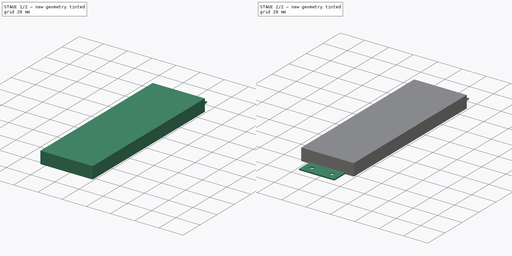
[diagram: build sequence overview — one tinted view per stage of 2, left to right]
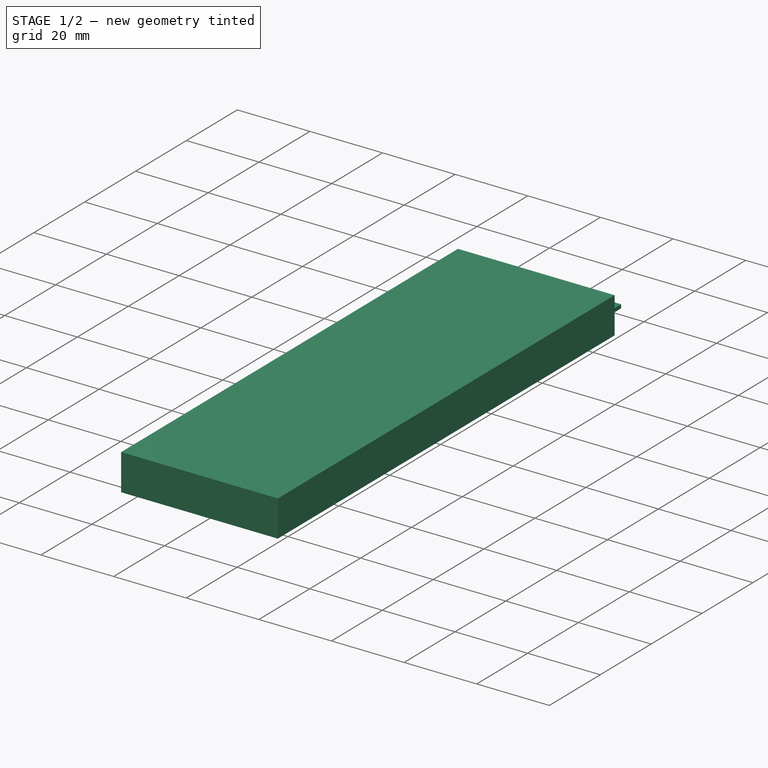
[diagram: stage 1 of 2 — iso view after this stage's code; geometry added in this stage tinted green]
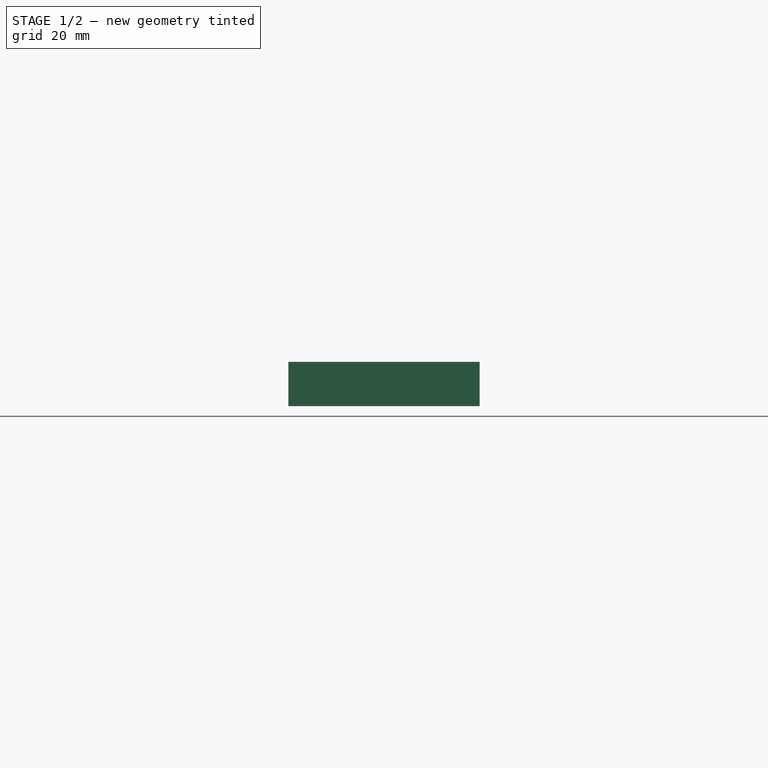
[diagram: stage 1 of 2 — front view after this stage's code; geometry added in this stage tinted green]
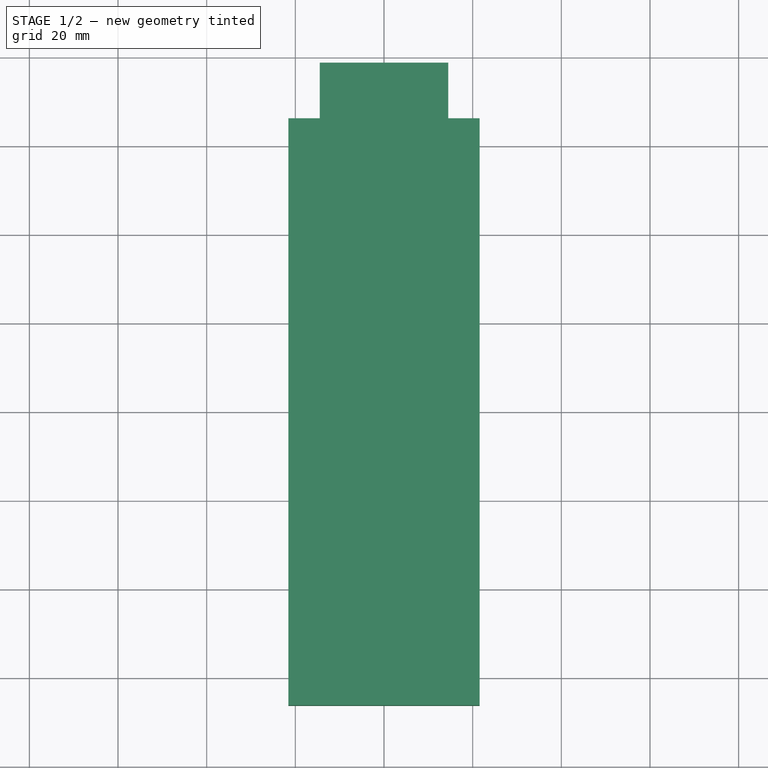
[diagram: stage 1 of 2 — top view after this stage's code; geometry added in this stage tinted green]
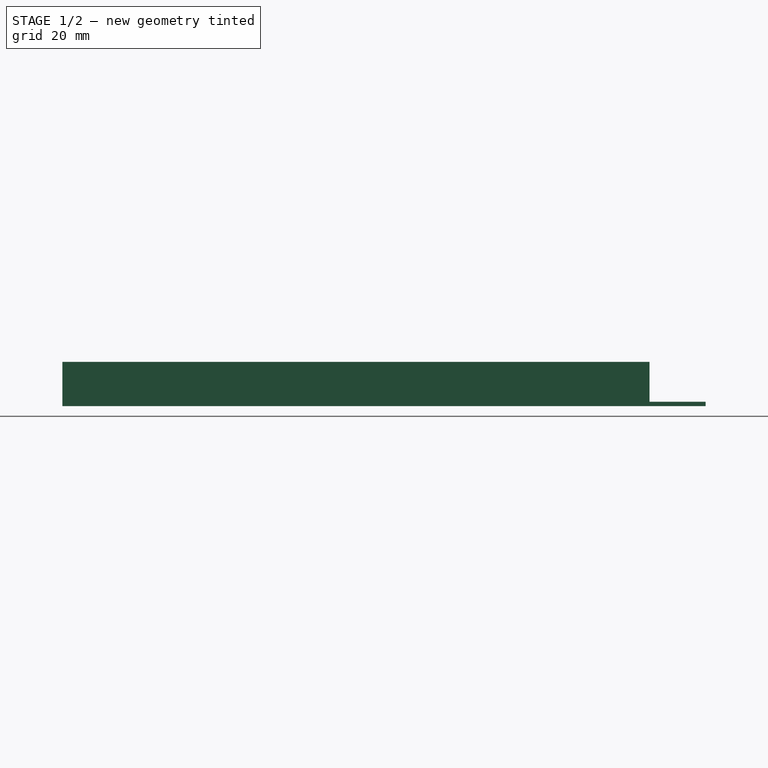
[diagram: stage 1 of 2 — right view after this stage's code; geometry added in this stage tinted green]
FCSTD DOCUMENT  (FreeCAD 0.22R37100 (Git))
Label: UET-VAF-060A67
License: All rights reserved
LicenseURL: http://en.wikipedia.org/wiki/All_rights_reserved
objects: Sketcher::SketchObject×5, PartDesign::SubShapeBinder×3, PartDesign::Pad×2, PartDesign::Pocket×1, PartDesign::Mirrored×1, PartDesign::Body×1
note: 16 computed .brp shape members not serialized (recipe doc carries the construction recipe); baked Part::Feature solids carry a one-line shape summary decoded from their .brp

FEATURE [Sketcher::SketchObject] Sketch  label="holes"
  FullyConstrained = true
  sketch-geometry (9):
    g0: LineSegment StartX=-8.25 StartY=-72.5 StartZ=0 EndX=8.25 EndY=-72.5 EndZ=0
    g1: LineSegment StartX=8.25 StartY=-72.5 StartZ=0 EndX=8.25 EndY=72.5 EndZ=0
    g2: LineSegment StartX=8.25 StartY=72.5 StartZ=0 EndX=-8.25 EndY=72.5 EndZ=0
    g3: LineSegment StartX=-8.25 StartY=72.5 StartZ=0 EndX=-8.25 EndY=-72.5 EndZ=0
    g4: GeomPoint X=0 Y=0 Z=0
    g5: Circle CenterX=8.25 CenterY=72.5 CenterZ=0 NormalX=0 NormalY=0 NormalZ=1 AngleXU=0 Radius=1.7
    g6: Circle CenterX=-8.25 CenterY=72.5 CenterZ=0 NormalX=0 NormalY=0 NormalZ=1 AngleXU=0 Radius=1.7
    g7: Circle CenterX=8.25 CenterY=-72.5 CenterZ=0 NormalX=0 NormalY=0 NormalZ=1 AngleXU=0 Radius=1.7
    g8: Circle CenterX=-8.25 CenterY=-72.5 CenterZ=0 NormalX=0 NormalY=0 NormalZ=1 AngleXU=0 Radius=1.7
  constraints (20):
    c: Coincident(g0,g1)
    c: Coincident(g1,g2)
    c: Coincident(g2,g3)
    c: Coincident(g3,g0)
    c: Horizontal(g0)
    c: Horizontal(g2)
    c: Vertical(g1)
    c: Vertical(g3)
    c: Symmetric(g2,g0,g4)
    c: Coincident(g4,g-1)
    c: Coincident(g5,g1)
    c: Coincident(g6,g2)
    c: Coincident(g7,g0)
    c: Coincident(g8,g0)
    c: Equal(g7,g5)
    c: Equal(g7,g6)
    c: Equal(g7,g8)
    c: Diameter(g7) = 3.4
    c: DistanceX(g8,g5) = 16.5
    c: DistanceY(g8,g5) = 145
FEATURE [Sketcher::SketchObject] Sketch001
  FullyConstrained = true
  sketch-geometry (5):
    g0: LineSegment StartX=-21.575 StartY=-65 StartZ=0 EndX=21.575 EndY=-65 EndZ=0
    g1: LineSegment StartX=21.575 StartY=-65 StartZ=0 EndX=21.575 EndY=65 EndZ=0
    g2: LineSegment StartX=21.575 StartY=65 StartZ=0 EndX=-21.575 EndY=65 EndZ=0
    g3: LineSegment StartX=-21.575 StartY=65 StartZ=0 EndX=-21.575 EndY=-65 EndZ=0
    g4: GeomPoint X=0 Y=0 Z=0
  constraints (12):
    c: Coincident(g0,g1)
    c: Coincident(g1,g2)
    c: Coincident(g2,g3)
    c: Coincident(g3,g0)
    c: Horizontal(g0)
    c: Horizontal(g2)
    c: Vertical(g1)
    c: Vertical(g3)
    c: Symmetric(g2,g0,g4)
    c: Coincident(g4,g-1)
    c: DistanceX(g0,g1) = 43.15
    c: DistanceY(g0,g1) = 130
FEATURE [Sketcher::SketchObject] Sketch002
  FullyConstrained = true
  Placement = pos=(0,65,0) rot=(0,0,1;0rad)
  sketch-geometry (8):
    g0: LineSegment StartX=-21.575 StartY=0 StartZ=0 EndX=21.575 EndY=0 EndZ=0
    g1: LineSegment StartX=21.575 StartY=0 StartZ=0 EndX=21.575 EndY=1.22 EndZ=0
    g2: LineSegment StartX=21.575 StartY=1.22 StartZ=0 EndX=14.5 EndY=1.22 EndZ=0
    g3: LineSegment StartX=14.5 StartY=1.22 StartZ=0 EndX=14.5 EndY=13.9 EndZ=0
    g4: LineSegment StartX=14.5 StartY=13.9 StartZ=0 EndX=-14.5 EndY=13.9 EndZ=0
    g5: LineSegment StartX=-14.5 StartY=13.9 StartZ=0 EndX=-14.5 EndY=1.22 EndZ=0
    g6: LineSegment StartX=-14.5 StartY=1.22 StartZ=0 EndX=-21.575 EndY=1.22 EndZ=0
    g7: LineSegment StartX=-21.575 StartY=1.22 StartZ=0 EndX=-21.575 EndY=0 EndZ=0
  constraints (22):
    c: PointOnObject(g0,g-1)
    c: PointOnObject(g0,g-1)
    c: Coincident(g0,g1)
    c: Vertical(g1)
    c: Coincident(g1,g2)
    c: Horizontal(g2)
    c: Coincident(g2,g3)
    c: Vertical(g3)
    c: Coincident(g3,g4)
    c: Coincident(g4,g5)
    c: Vertical(g5)
    c: Coincident(g5,g6)
    c: Horizontal(g6)
    c: Coincident(g6,g7)
    c: Coincident(g7,g0)
    c: Vertical(g7)
    c: Symmetric(g4,g3,g-2)
    c: Symmetric(g6,g1,g-2)
    c: DistanceX(g0,g0) = 43.15
    c: DistanceY(g1) = 1.22
    c: DistanceY(g3) = 13.9
    c: DistanceX(g4,g4) = 29
FEATURE [PartDesign::SubShapeBinder] Binder
  BindCopyOnChange = 0
  BindMode = 0
  ClaimChildren = false
  Context = -> Body [Binder.]
  Fuse = false
  MakeFace = true
  OffsetFill = false
  OffsetIntersection = false
  OffsetJoinType = 0
  OffsetOpenResult = false
  PartialLoad = false
  Relative = true
  Support = -> [Sketch001]
  _Version = 2
FEATURE [PartDesign::SubShapeBinder] Binder001
  BindCopyOnChange = 0
  BindMode = 0
  ClaimChildren = false
  Context = -> Body [Binder001.]
  Fuse = false
  MakeFace = true
  OffsetFill = false
  OffsetIntersection = false
  OffsetJoinType = 0
  OffsetOpenResult = false
  PartialLoad = false
  Relative = true
  Support = -> [Sketch002]
  _Version = 2
FEATURE [PartDesign::SubShapeBinder] Binder002
  BindCopyOnChange = 0
  BindMode = 0
  ClaimChildren = false
  Context = -> Body [Binder002.]
  Fuse = false
  MakeFace = true
  OffsetFill = false
  OffsetIntersection = false
  OffsetJoinType = 0
  OffsetOpenResult = false
  PartialLoad = false
  Relative = true
  Support = -> [Sketch]
  _Version = 2
FEATURE [Sketcher::SketchObject] Sketch003
  AttachmentSupport = -> [XY_Plane]
  ExternalGeometry = -> [Binder001]
  FullyConstrained = true
  MapMode = 5
  sketch-geometry (5):
    g0: LineSegment StartX=-21.575 StartY=-66.22 StartZ=0 EndX=21.575 EndY=-66.22 EndZ=0
    g1: LineSegment StartX=21.575 StartY=-66.22 StartZ=0 EndX=21.575 EndY=66.22 EndZ=0
    g2: LineSegment StartX=21.575 StartY=66.22 StartZ=0 EndX=-21.575 EndY=66.22 EndZ=0
    g3: LineSegment StartX=-21.575 StartY=66.22 StartZ=0 EndX=-21.575 EndY=-66.22 EndZ=0
    g4: GeomPoint X=0 Y=0 Z=0
  constraints (11):
    c: Coincident(g0,g1)
    c: Coincident(g1,g2)
    c: Coincident(g2,g3)
    c: Coincident(g3,g0)
    c: Horizontal(g0)
    c: Horizontal(g2)
    c: Vertical(g1)
    c: Vertical(g3)
    c: Symmetric(g2,g0,g4)
    c: Coincident(g4,g-1)
    c: Coincident(g1,g-3)
FEATURE [PartDesign::Pad] Pad
  Direction = (0,0,1)
  Length = 10
  Length2 = 10
  Profile = -> Sketch003
  ReferenceAxis = -> Sketch003 [N_Axis]
  Suppressed = false
  Type = 0
FEATURE [Sketcher::SketchObject] Sketch004
  AttachmentSupport = -> [XY_Plane]
  ExternalGeometry = -> [Binder001]
  FullyConstrained = true
  MapMode = 5
  sketch-geometry (5):
    g0: LineSegment StartX=-14.5 StartY=66.22 StartZ=0 EndX=14.5 EndY=66.22 EndZ=0
    g1: LineSegment StartX=14.5 StartY=66.22 StartZ=0 EndX=14.5 EndY=78.9 EndZ=0
    g2: LineSegment StartX=14.5 StartY=78.9 StartZ=0 EndX=-14.5 EndY=78.9 EndZ=0
    g3: LineSegment StartX=-14.5 StartY=78.9 StartZ=0 EndX=-14.5 EndY=66.22 EndZ=0
    g4: GeomPoint X=0 Y=72.56 Z=0
  constraints (11):
    c: Coincident(g0,g1)
    c: Coincident(g1,g2)
    c: Coincident(g2,g3)
    c: Coincident(g3,g0)
    c: Horizontal(g0)
    c: Horizontal(g2)
    c: Vertical(g3)
    c: Symmetric(g2,g0,g4)
    c: PointOnObject(g4,g-2)
    c: Coincident(g1,g-3)
    c: Coincident(g0,g-3)
FEATURE [PartDesign::Pad] Pad001
  BaseFeature = -> Pad
  Direction = (0,0,1)
  Length = 1
  Length2 = 10
  Profile = -> Sketch004
  ReferenceAxis = -> Sketch004 [N_Axis]
  Suppressed = false
  Type = 0
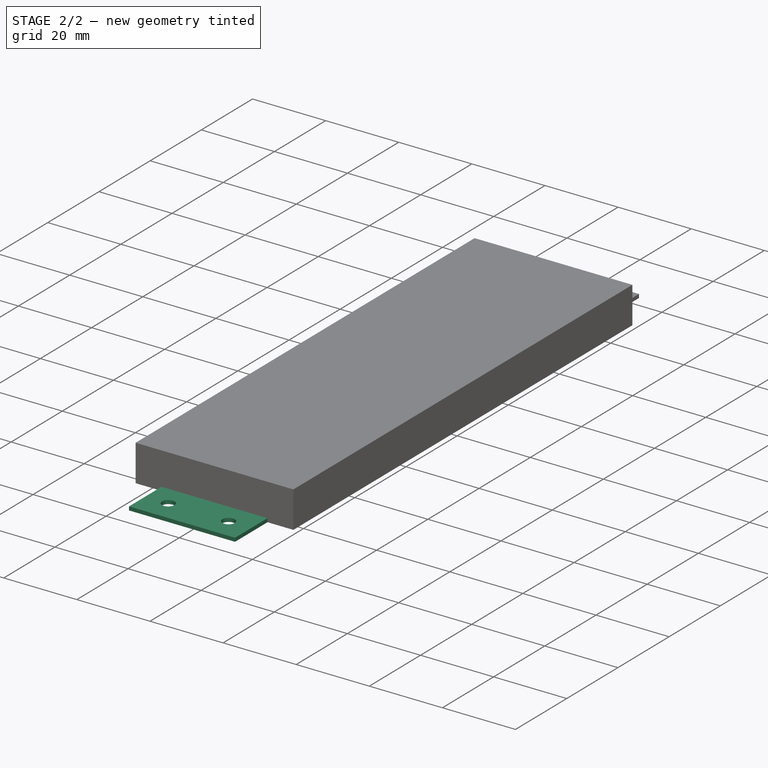
[diagram: stage 2 of 2 — iso view after this stage's code; geometry added in this stage tinted green]
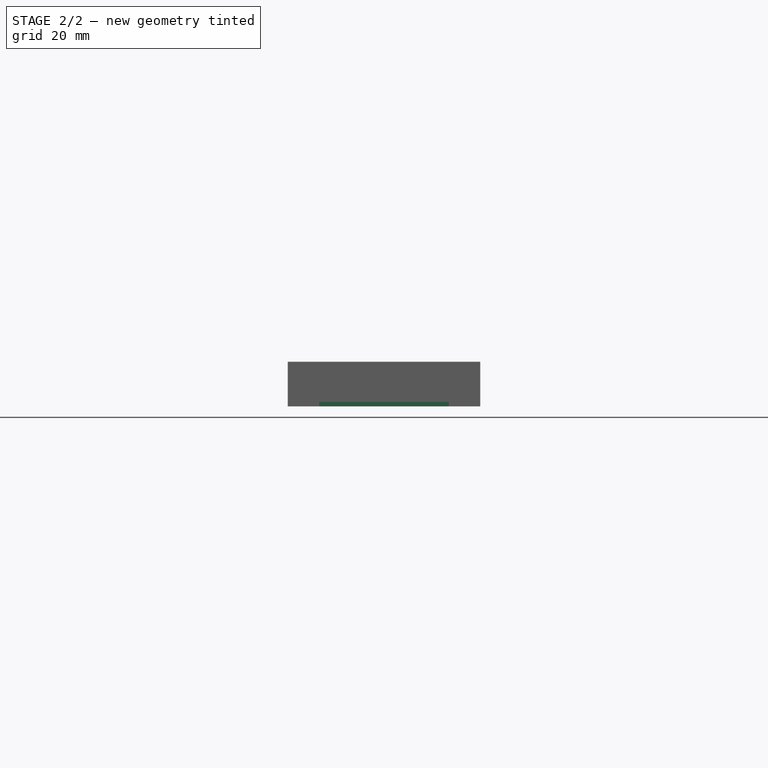
[diagram: stage 2 of 2 — front view after this stage's code; geometry added in this stage tinted green]
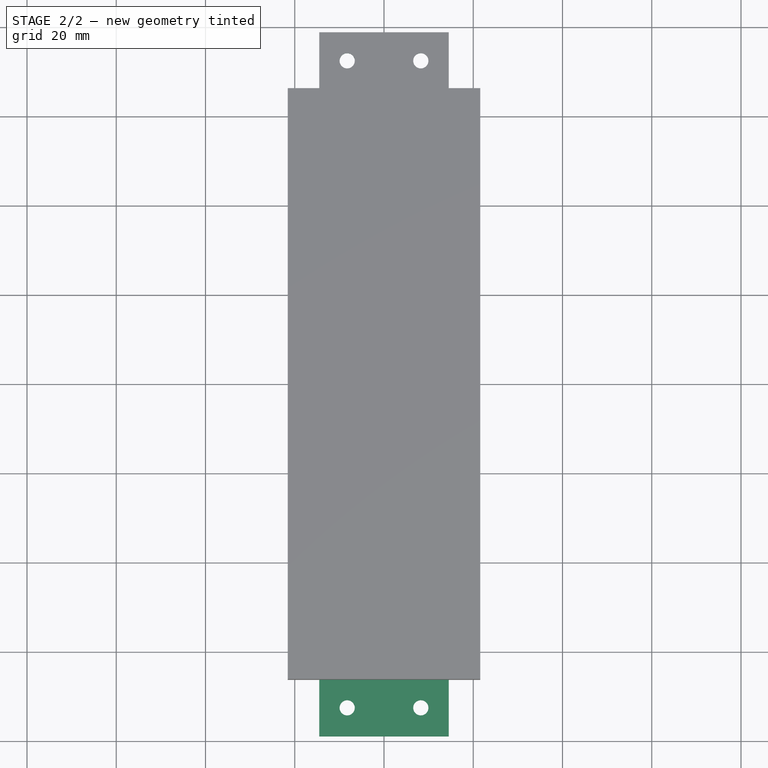
[diagram: stage 2 of 2 — top view after this stage's code; geometry added in this stage tinted green]
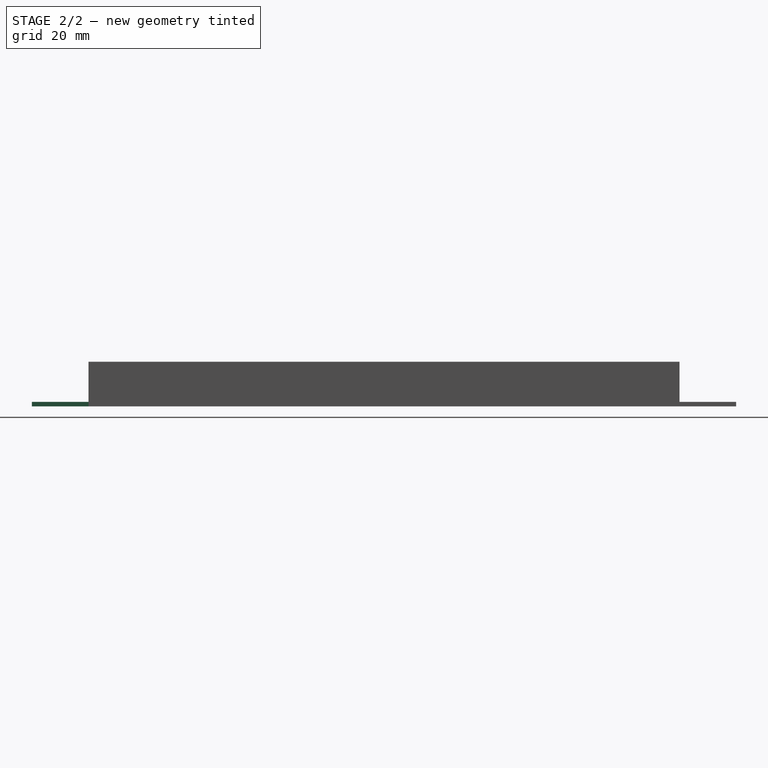
[diagram: stage 2 of 2 — right view after this stage's code; geometry added in this stage tinted green]
FEATURE [PartDesign::Pocket] Pocket
  BaseFeature = -> Pad001
  Direction = (0,0,-1)
  Length = 5
  Length2 = 5
  Profile = -> Binder002
  Reversed = true
  Suppressed = false
  Type = 0
FEATURE [PartDesign::Mirrored] Mirrored
  BaseFeature = -> Pocket
  MirrorPlane = -> Sketch004 [H_Axis]
  Originals = -> [Pad001,Pocket]
  Suppressed = false
FEATURE [PartDesign::Body] Body
  Group = -> [Binder,Binder001,Binder002,Sketch003,Pad,Sketch004,Pad001,Pocket,Mirrored]
  Origin = -> Origin
  Tip = -> Mirrored
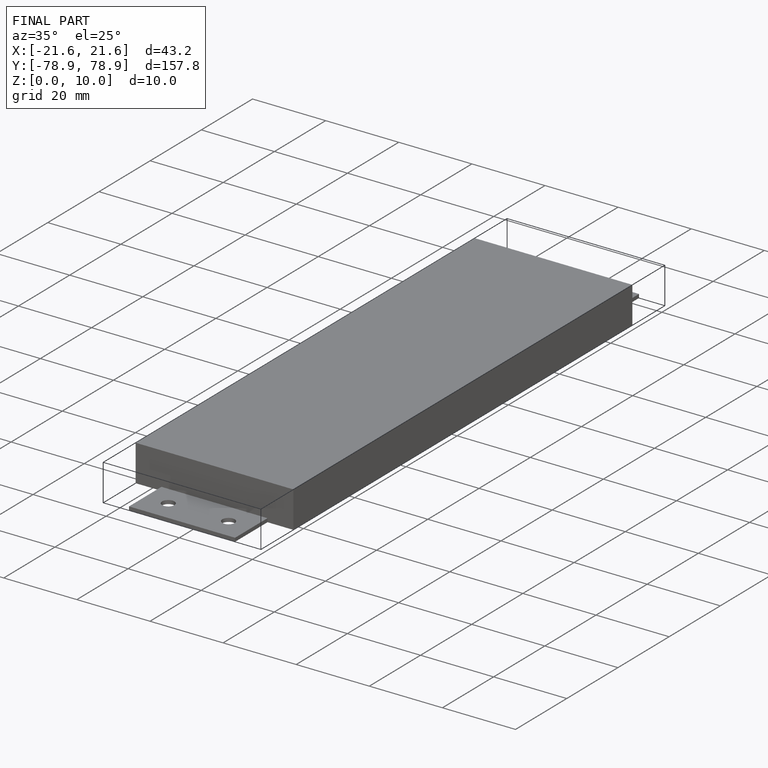
[diagram: finished part — iso view with bounding-box wireframe]
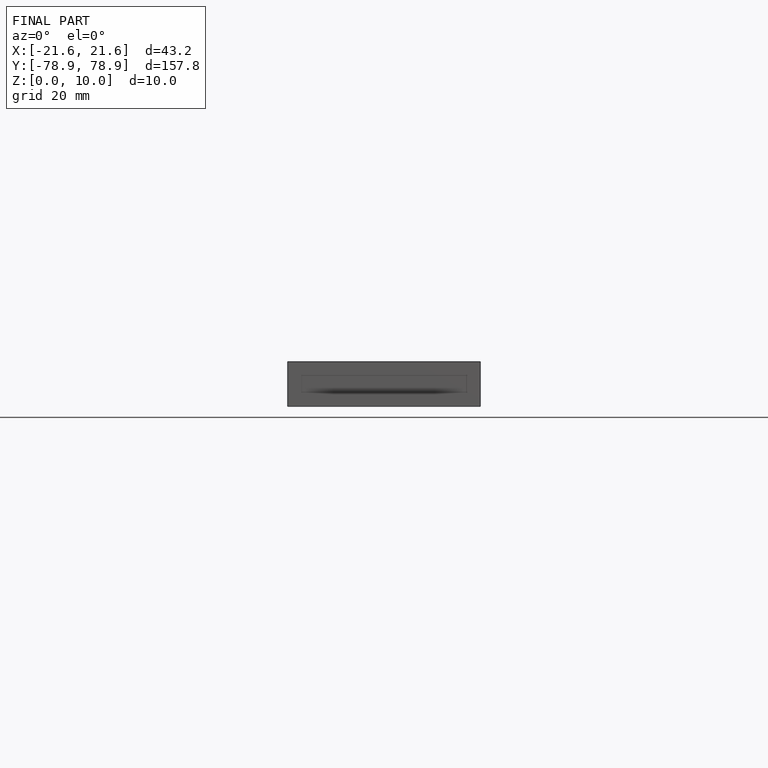
[diagram: finished part — front view with bounding-box wireframe]
